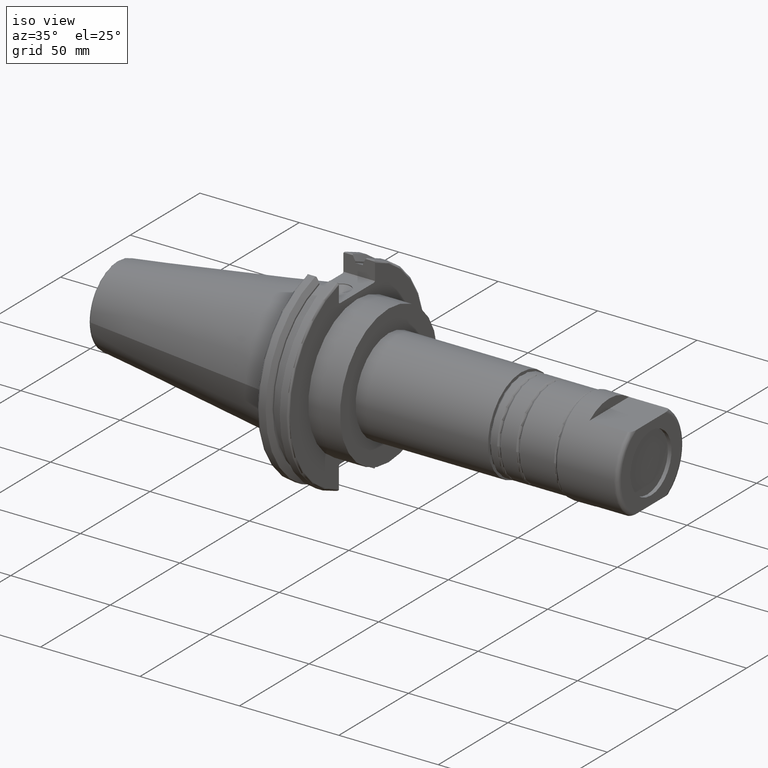
[diagram: clean part render]
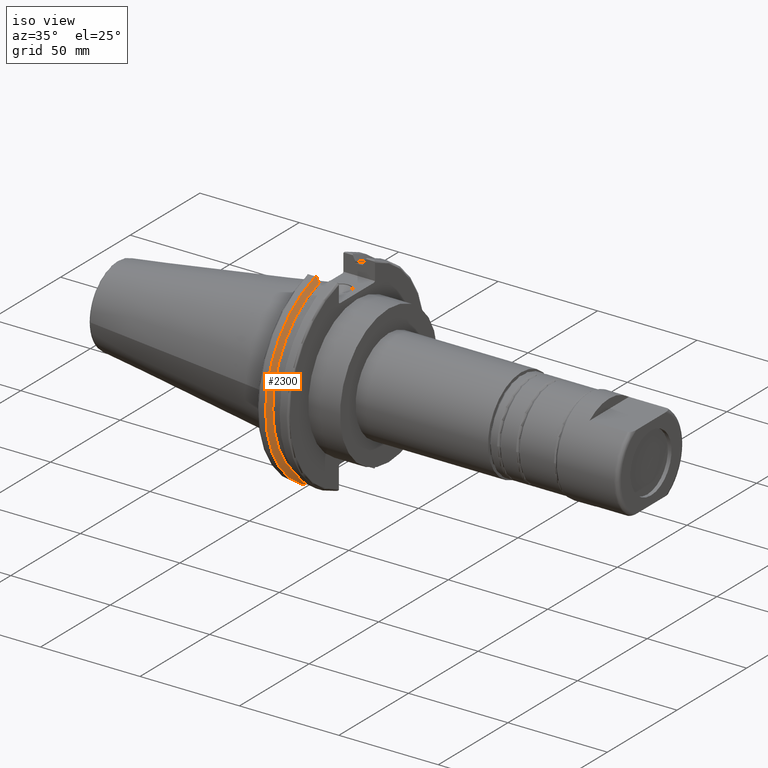
[diagram: same view with one face highlighted and labeled with its STEP entity id]
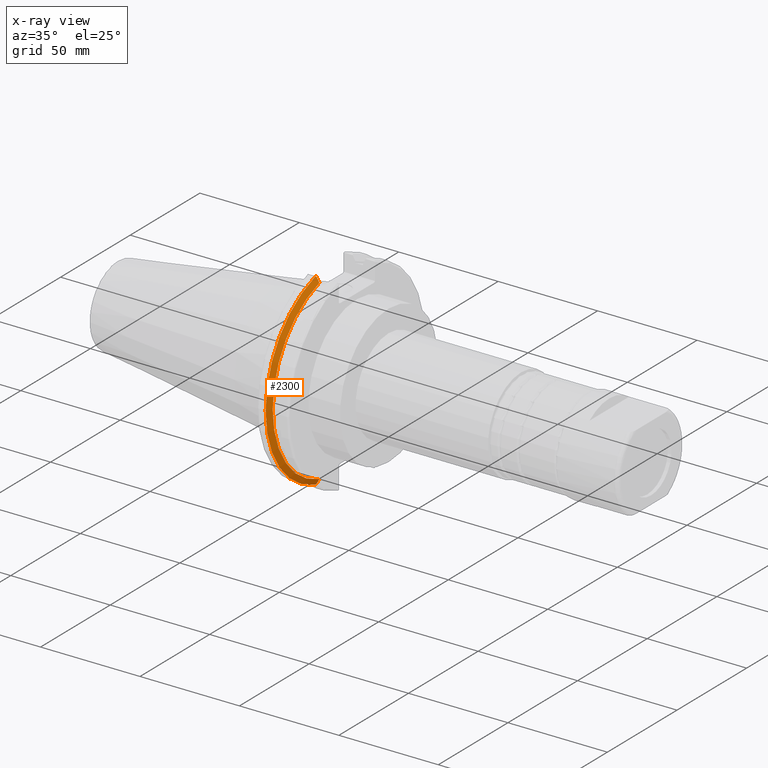
[diagram: x-ray of the same camera — body ghosted, the highlighted face saturated]
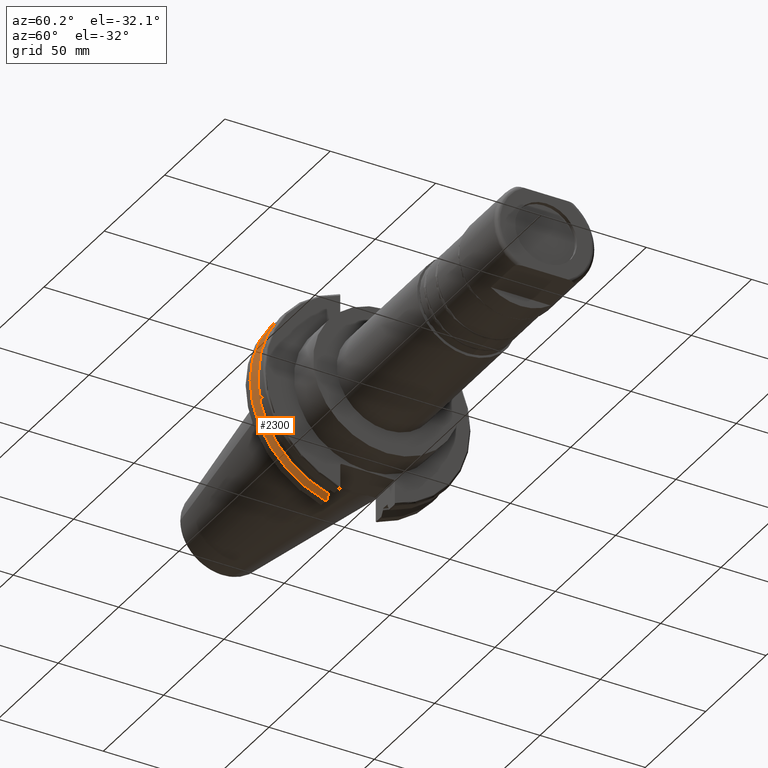
[diagram: same view with one face highlighted and labeled with its STEP entity id]
A machine part, iso view. The second image highlights one B-rep face of the part: STEP entity #2300.
The next image is the same camera in x-ray: the body ghosted, the highlighted face saturated — about 0% of this face is hidden behind the body in this view.
A second angle (auxiliary view) of the same face is appended — the face is thin or edge-on in the first view.
In plain terms, the highlighted conical surface has half-angle 60 deg.
Its self-contained STEP definition (entity closure, byte-faithful):
#514=(
BOUNDED_CURVE()
B_SPLINE_CURVE(2,(#3888,#3889,#3890),.UNSPECIFIED.,.F.,.F.)
B_SPLINE_CURVE_WITH_KNOTS((3,3),(0.,0.275823910675363),.UNSPECIFIED.)
CURVE()
GEOMETRIC_REPRESENTATION_ITEM()
RATIONAL_B_SPLINE_CURVE((1.,1.00038235575411,1.00012873637099))
REPRESENTATION_ITEM('')
);
#517=(
BOUNDED_CURVE()
B_SPLINE_CURVE(2,(#3916,#3917,#3918),.UNSPECIFIED.,.F.,.F.)
B_SPLINE_CURVE_WITH_KNOTS((3,3),(0.0558332664508432,0.331657177124506),
 .UNSPECIFIED.)
CURVE()
GEOMETRIC_REPRESENTATION_ITEM()
RATIONAL_B_SPLINE_CURVE((1.00012873636717,1.00038235574275,1.))
REPRESENTATION_ITEM('')
);
#518=(
BOUNDED_CURVE()
B_SPLINE_CURVE(2,(#3951,#3952,#3953),.UNSPECIFIED.,.F.,.F.)
B_SPLINE_CURVE_WITH_KNOTS((3,3),(0.,0.0648240472897574),.UNSPECIFIED.)
CURVE()
GEOMETRIC_REPRESENTATION_ITEM()
RATIONAL_B_SPLINE_CURVE((1.,1.00011477674865,1.00019140645997))
REPRESENTATION_ITEM('')
);
#519=(
BOUNDED_CURVE()
B_SPLINE_CURVE(2,(#3959,#3960,#3961),.UNSPECIFIED.,.F.,.F.)
B_SPLINE_CURVE_WITH_KNOTS((3,3),(0.325260944932423,0.3900849922222),
 .UNSPECIFIED.)
CURVE()
GEOMETRIC_REPRESENTATION_ITEM()
RATIONAL_B_SPLINE_CURVE((1.00019140645937,1.00011477674829,1.))
REPRESENTATION_ITEM('')
);
#548=CONICAL_SURFACE('',#2650,47.8172386482472,1.0471975511966);
#595=CIRCLE('',#2612,49.2125);
#610=CIRCLE('',#2651,46.4219772964944);
#778=FACE_OUTER_BOUND('',#895,.T.);
#895=EDGE_LOOP('',(#1930,#1931,#1932,#1933,#1934,#1935));
#1288=VERTEX_POINT('',#3885);
#1289=VERTEX_POINT('',#3887);
#1298=VERTEX_POINT('',#3913);
#1299=VERTEX_POINT('',#3915);
#1303=VERTEX_POINT('',#3949);
#1304=VERTEX_POINT('',#3955);
#1483=EDGE_CURVE('',#1289,#1288,#514,.T.);
#1494=EDGE_CURVE('',#1299,#1298,#517,.T.);
#1502=EDGE_CURVE('',#1303,#1288,#518,.T.);
#1504=EDGE_CURVE('',#1303,#1304,#595,.T.);
#1505=EDGE_CURVE('',#1299,#1304,#519,.T.);
#1548=EDGE_CURVE('',#1289,#1298,#610,.T.);
#1930=ORIENTED_EDGE('',*,*,#1505,.F.);
#1931=ORIENTED_EDGE('',*,*,#1494,.T.);
#1932=ORIENTED_EDGE('',*,*,#1548,.F.);
#1933=ORIENTED_EDGE('',*,*,#1483,.T.);
#1934=ORIENTED_EDGE('',*,*,#1502,.F.);
#1935=ORIENTED_EDGE('',*,*,#1504,.T.);
#2300=ADVANCED_FACE('',(#778),#548,.T.);
#2612=AXIS2_PLACEMENT_3D('',#3957,#3036,#3037);
#2650=AXIS2_PLACEMENT_3D('',#4081,#3130,#3131);
#2651=AXIS2_PLACEMENT_3D('',#4082,#3132,#3133);
#3036=DIRECTION('center_axis',(1.,0.,0.));
#3037=DIRECTION('ref_axis',(0.,0.,-1.));
#3130=DIRECTION('center_axis',(-1.,0.,0.));
#3131=DIRECTION('ref_axis',(0.,-1.,-1.22464679914735E-16));
#3132=DIRECTION('center_axis',(1.,0.,0.));
#3133=DIRECTION('ref_axis',(0.,0.,-1.));
#3885=CARTESIAN_POINT('',(7.87958960562425,-12.95,46.9780755322918));
#3887=CARTESIAN_POINT('',(9.2123,-12.95,44.5791147973604));
#3888=CARTESIAN_POINT('Ctrl Pts',(9.2123,-12.95,44.5791147973604));
#3889=CARTESIAN_POINT('Ctrl Pts',(8.56340449055559,-12.95,45.7494966802201));
#3890=CARTESIAN_POINT('Ctrl Pts',(7.87958960562425,-12.95,46.9780755322918));
#3913=CARTESIAN_POINT('',(9.2123,-12.95,-44.5791147973604));
#3915=CARTESIAN_POINT('',(7.87958960562425,-12.95,-46.9780755322918));
#3916=CARTESIAN_POINT('Ctrl Pts',(7.87958960562425,-12.95,-46.9780755322918));
#3917=CARTESIAN_POINT('Ctrl Pts',(8.56340449054235,-12.95,-45.7494966802439));
#3918=CARTESIAN_POINT('Ctrl Pts',(9.2123,-12.95,-44.5791147973604));
#3949=CARTESIAN_POINT('',(7.60119096595128,-13.4317035994433,47.3440544806494));
#3951=CARTESIAN_POINT('Ctrl Pts',(7.60119096595127,-13.4317035994433,47.3440544806494));
#3952=CARTESIAN_POINT('Ctrl Pts',(7.74146896663823,-13.1896660169965,47.1601640966264));
#3953=CARTESIAN_POINT('Ctrl Pts',(7.87958960562425,-12.95,46.9780755322918));
#3955=CARTESIAN_POINT('',(7.60119096595128,-13.4317035994433,-47.3440544806494));
#3957=CARTESIAN_POINT('Origin',(7.60119096595128,0.,0.));
#3959=CARTESIAN_POINT('Ctrl Pts',(7.87958960562425,-12.95,-46.9780755322918));
#3960=CARTESIAN_POINT('Ctrl Pts',(7.74146896663818,-13.1896660169967,-47.1601640966265));
#3961=CARTESIAN_POINT('Ctrl Pts',(7.60119096595127,-13.4317035994433,-47.3440544806494));
#4081=CARTESIAN_POINT('Origin',(8.40674548297564,0.,0.));
#4082=CARTESIAN_POINT('Origin',(9.2123,0.,0.));